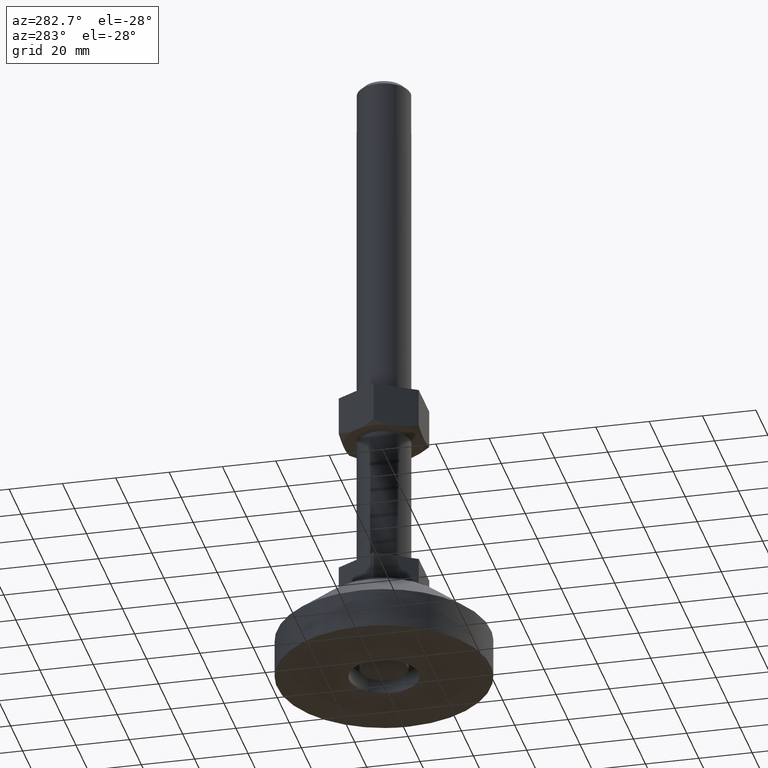
[diagram: clean part render]
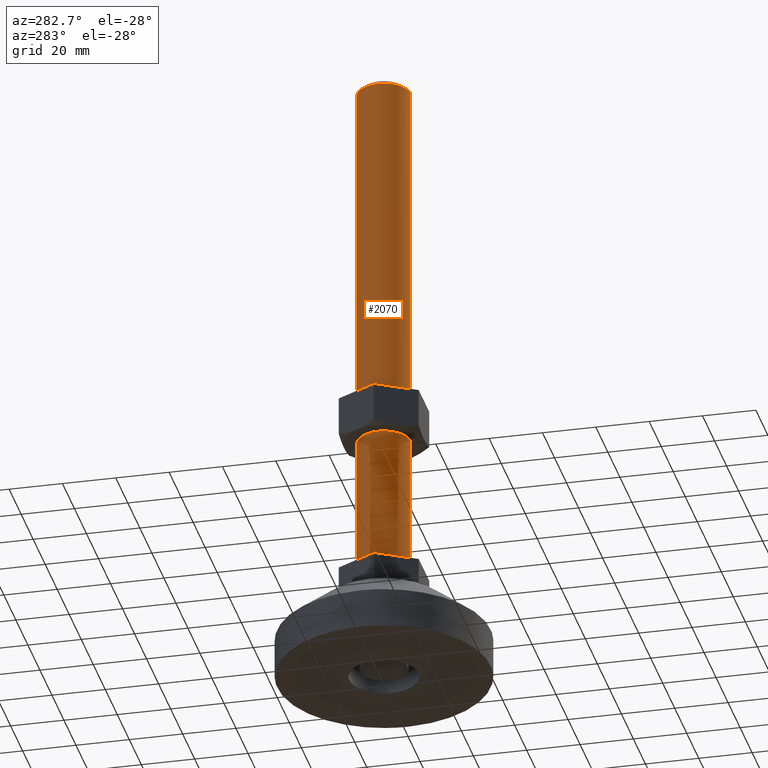
[diagram: same view with one face highlighted and labeled with its STEP entity id]
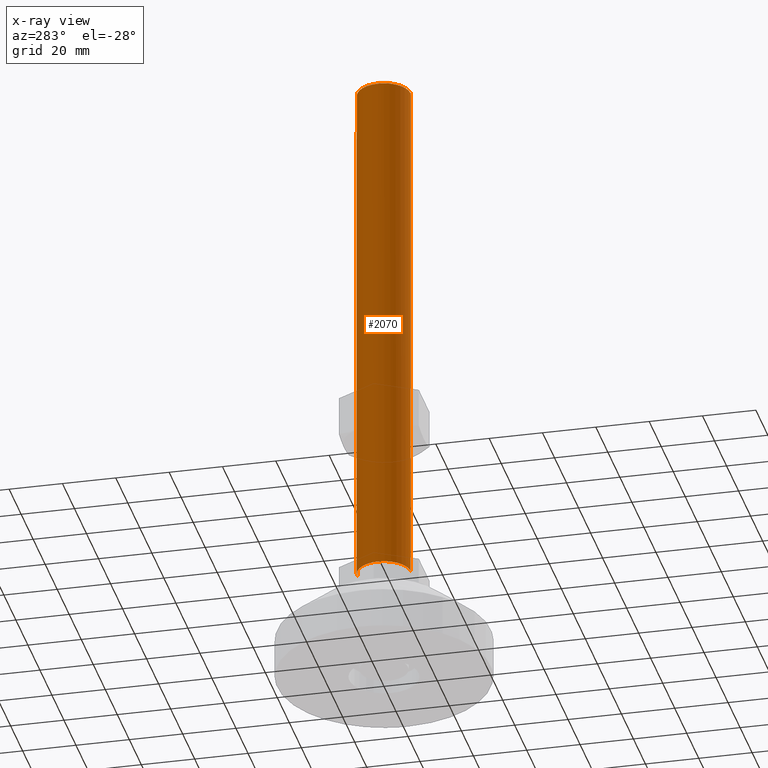
[diagram: x-ray of the same camera — body ghosted, the highlighted face saturated]
A machine part, auxiliary view. The second image highlights one B-rep face of the part: STEP entity #2070.
The next image is the same camera in x-ray: the body ghosted, the highlighted face saturated — about 0% of this face is hidden behind the body in this view.
In plain terms, the highlighted face is a freeform B-spline surface patch.
Its self-contained STEP definition (entity closure, byte-faithful):
#1629=CARTESIAN_POINT('',(-0.610485397274170,9.981347984356784,240.499999999745910));
#1630=VERTEX_POINT('',#1629);
#1631=CARTESIAN_POINT('',(0.087265356108300,9.999619230755483,240.499999999754610));
#1632=VERTEX_POINT('',#1631);
#1633=CARTESIAN_POINT('',(-0.610485397274170,9.981347984356784,240.499999999745910));
#1634=CARTESIAN_POINT('',(-0.378223334996025,9.995555024024331,240.499999999748890));
#1635=CARTESIAN_POINT('',(-0.145425531674097,10.001650955410510,240.499999999751400));
#1636=CARTESIAN_POINT('',(0.087265356108300,9.999619230755483,240.499999999754610));
#1637=B_SPLINE_CURVE_WITH_KNOTS('',3,(#1633,#1634,#1635,#1636),.UNSPECIFIED.,.F.,.U.,(4,4),(0.000000024053164,0.698140563161017),.UNSPECIFIED.);
#1638=EDGE_CURVE('',#1630,#1632,#1637,.T.);
#1703=CARTESIAN_POINT('',(-10.000000000002210,0.0,240.500000000000000));
#1704=VERTEX_POINT('',#1703);
#1705=CARTESIAN_POINT('',(-10.000000000002210,0.0,240.500000000000000));
#1706=CARTESIAN_POINT('',(-10.000000000009937,9.407060667381908,240.499999999872930));
#1707=CARTESIAN_POINT('',(-0.610485397274170,9.981347984356784,240.499999999745940));
#1715=(BOUNDED_CURVE()B_SPLINE_CURVE(2,(#1705,#1706,#1707),.UNSPECIFIED.,.F.,.U.)B_SPLINE_CURVE_WITH_KNOTS((3,3),(0.0,0.239332962208950),.UNSPECIFIED.)CURVE()GEOMETRIC_REPRESENTATION_ITEM()RATIONAL_B_SPLINE_CURVE((1.0,0.719603993321849,0.976072041602437))REPRESENTATION_ITEM(''));
#1716=EDGE_CURVE('',#1704,#1630,#1715,.T.);
#1718=CARTESIAN_POINT('',(-0.087265356108272,-9.999619230755485,240.499999999754610));
#1719=VERTEX_POINT('',#1718);
#1720=CARTESIAN_POINT('',(-0.087265356108272,-9.999619230755485,240.499999999754610));
#1721=CARTESIAN_POINT('',(-9.999999999994463,-9.913112104877804,240.499999999881480));
#1722=CARTESIAN_POINT('',(-10.000000000002210,0.0,240.500000000000000));
#1730=(BOUNDED_CURVE()B_SPLINE_CURVE(2,(#1720,#1721,#1722),.UNSPECIFIED.,.F.,.U.)B_SPLINE_CURVE_WITH_KNOTS((3,3),(0.751539894355078,1.0),.UNSPECIFIED.)CURVE()GEOMETRIC_REPRESENTATION_ITEM()RATIONAL_B_SPLINE_CURVE((0.996414028053911,0.708910879643713,1.0))REPRESENTATION_ITEM(''));
#1731=EDGE_CURVE('',#1719,#1704,#1730,.T.);
#1968=CARTESIAN_POINT('',(-0.087265355663004,-9.999619230636743,42.500000000000000));
#1969=VERTEX_POINT('',#1968);
#1970=CARTESIAN_POINT('',(-0.087265356108272,-9.999619230755485,240.499999999754610));
#1971=CARTESIAN_POINT('',(-0.087265355663004,-9.999619230636743,42.500000000000000));
#1972=QUASI_UNIFORM_CURVE('',1,(#1970,#1971),.UNSPECIFIED.,.F.,.U.);
#1973=EDGE_CURVE('',#1719,#1969,#1972,.T.);
#1992=CARTESIAN_POINT('',(0.087265355663034,9.999619230636743,42.499999999999993));
#1993=VERTEX_POINT('',#1992);
#2007=CARTESIAN_POINT('',(0.087265356108300,9.999619230755483,240.499999999754610));
#2008=CARTESIAN_POINT('',(0.087265355663034,9.999619230636743,42.499999999999993));
#2009=QUASI_UNIFORM_CURVE('',1,(#2007,#2008),.UNSPECIFIED.,.F.,.U.);
#2010=EDGE_CURVE('',#1632,#1993,#2009,.T.);
#2015=CARTESIAN_POINT('',(-0.087265354983733,-9.999619230642669,245.450000000000100));
#2016=CARTESIAN_POINT('',(-10.086884585626402,-9.912353875658921,245.450000000000020));
#2017=CARTESIAN_POINT('',(-9.999619230642654,0.087265354983747,245.450000000000100));
#2018=CARTESIAN_POINT('',(-9.912353875658907,10.086884585626416,245.450000000000020));
#2019=CARTESIAN_POINT('',(0.087265354983762,9.999619230642669,245.450000000000100));
#2020=CARTESIAN_POINT('',(-0.087265354983733,-9.999619230642669,37.426250000000010));
#2021=CARTESIAN_POINT('',(-10.086884585626402,-9.912353875658921,37.426250000000003));
#2022=CARTESIAN_POINT('',(-9.999619230642654,0.087265354983747,37.426250000000010));
#2023=CARTESIAN_POINT('',(-9.912353875658907,10.086884585626416,37.426250000000003));
#2024=CARTESIAN_POINT('',(0.087265354983762,9.999619230642669,37.426250000000010));
#2032=(BOUNDED_SURFACE()B_SPLINE_SURFACE(2,1,((#2015,#2020),(#2016,#2021),(#2017,#2022),(#2018,#2023),(#2019,#2024)),.UNSPECIFIED.,.F.,.F.,.U.)B_SPLINE_SURFACE_WITH_KNOTS((3,2,3),(2,2),(0.0,16.568542494925389,33.137084989850770),(0.0,208.023750000000090),.UNSPECIFIED.)GEOMETRIC_REPRESENTATION_ITEM()RATIONAL_B_SPLINE_SURFACE(((1.0,1.0),(0.707106781186548,0.707106781186548),(1.0,1.0),(0.707106781186548,0.707106781186548),(1.0,1.0)))REPRESENTATION_ITEM('')SURFACE());
#2033=ORIENTED_EDGE('',*,*,#1638,.T.);
#2034=ORIENTED_EDGE('',*,*,#2010,.T.);
#2035=CARTESIAN_POINT('',(-10.000000000000950,0.0,42.500000000000000));
#2036=VERTEX_POINT('',#2035);
#2037=CARTESIAN_POINT('',(0.087265355663035,9.999619230636744,42.500000000000014));
#2038=CARTESIAN_POINT('',(0.043633508546690,10.000000000000959,42.500000000000000));
#2039=CARTESIAN_POINT('',(1.421085E-014,10.000000000000959,42.500000000000000));
#2040=CARTESIAN_POINT('',(-10.000000000000945,10.000000000000959,42.500000000000000));
#2041=CARTESIAN_POINT('',(-10.000000000000950,0.0,42.500000000000000));
#2049=(BOUNDED_CURVE()B_SPLINE_CURVE(2,(#2037,#2038,#2039,#2040,#2041),.UNSPECIFIED.,.F.,.U.)B_SPLINE_CURVE_WITH_KNOTS((3,2,3),(0.248460105653047,0.250000000000000,0.500000000000000),.UNSPECIFIED.)CURVE()GEOMETRIC_REPRESENTATION_ITEM()RATIONAL_B_SPLINE_CURVE((0.996414028072715,0.998195901552354,1.0,0.707106781186548,1.0))REPRESENTATION_ITEM(''));
#2050=EDGE_CURVE('',#1993,#2036,#2049,.T.);
#2051=ORIENTED_EDGE('',*,*,#2050,.T.);
#2052=CARTESIAN_POINT('',(-10.000000000000950,0.0,42.500000000000000));
#2053=CARTESIAN_POINT('',(-10.000000000000947,-9.913112105277312,42.499999999999993));
#2054=CARTESIAN_POINT('',(-0.087265355663005,-9.999619230636743,42.499999999999993));
#2062=(BOUNDED_CURVE()B_SPLINE_CURVE(2,(#2052,#2053,#2054),.UNSPECIFIED.,.F.,.U.)B_SPLINE_CURVE_WITH_KNOTS((3,3),(0.500000000000000,0.748460105653048),.UNSPECIFIED.)CURVE()GEOMETRIC_REPRESENTATION_ITEM()RATIONAL_B_SPLINE_CURVE((1.0,0.708910879634194,0.996414028072715))REPRESENTATION_ITEM(''));
#2063=EDGE_CURVE('',#2036,#1969,#2062,.T.);
#2064=ORIENTED_EDGE('',*,*,#2063,.T.);
#2065=ORIENTED_EDGE('',*,*,#1973,.F.);
#2066=ORIENTED_EDGE('',*,*,#1731,.T.);
#2067=ORIENTED_EDGE('',*,*,#1716,.T.);
#2068=EDGE_LOOP('',(#2033,#2034,#2051,#2064,#2065,#2066,#2067));
#2069=FACE_OUTER_BOUND('',#2068,.T.);
#2070=ADVANCED_FACE('',(#2069),#2032,.T.);